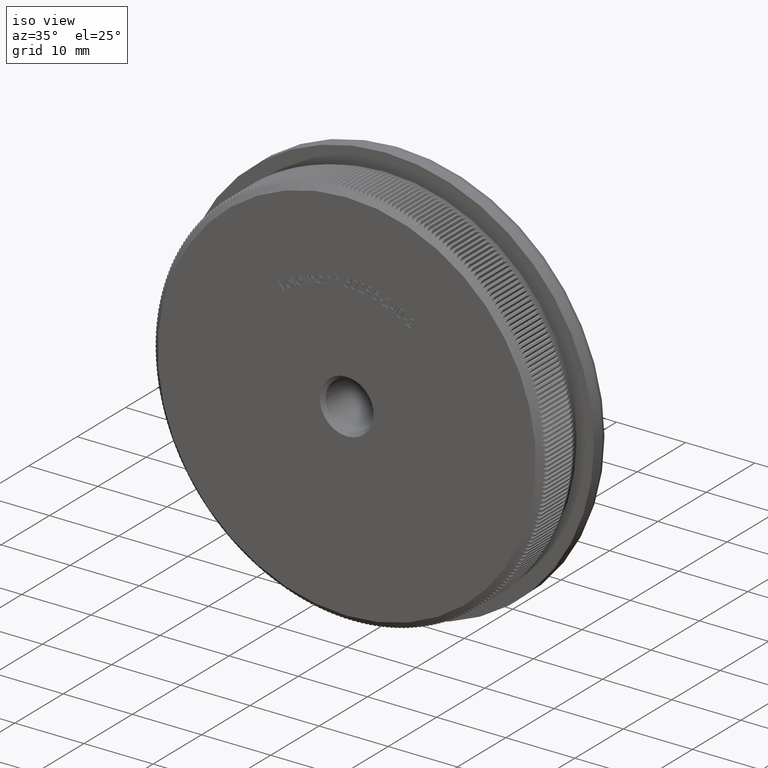
[diagram: clean part render]
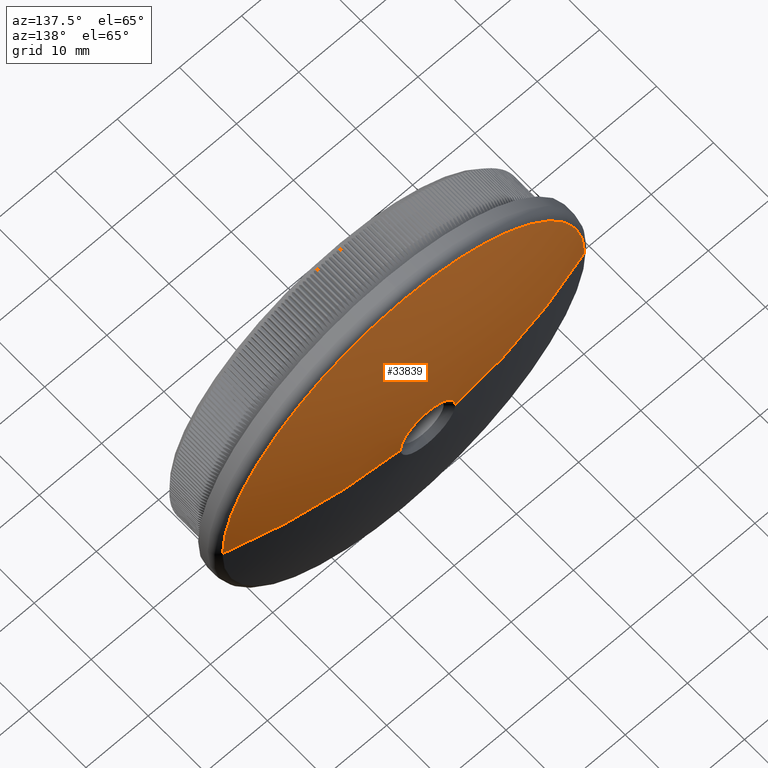
[diagram: tour spotlight — one face highlighted and labeled with its STEP entity id]
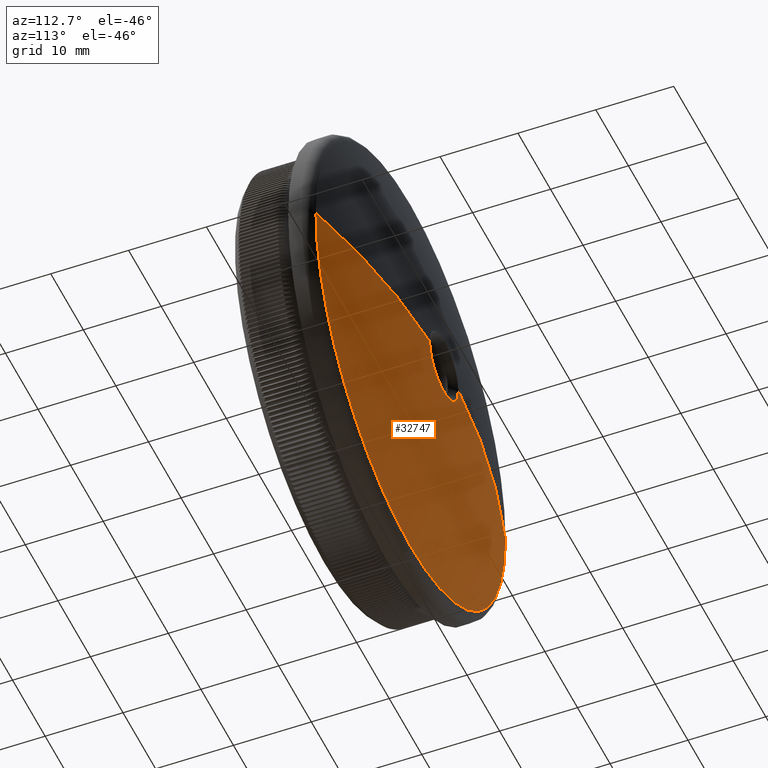
[diagram: tour spotlight — one face highlighted and labeled with its STEP entity id]
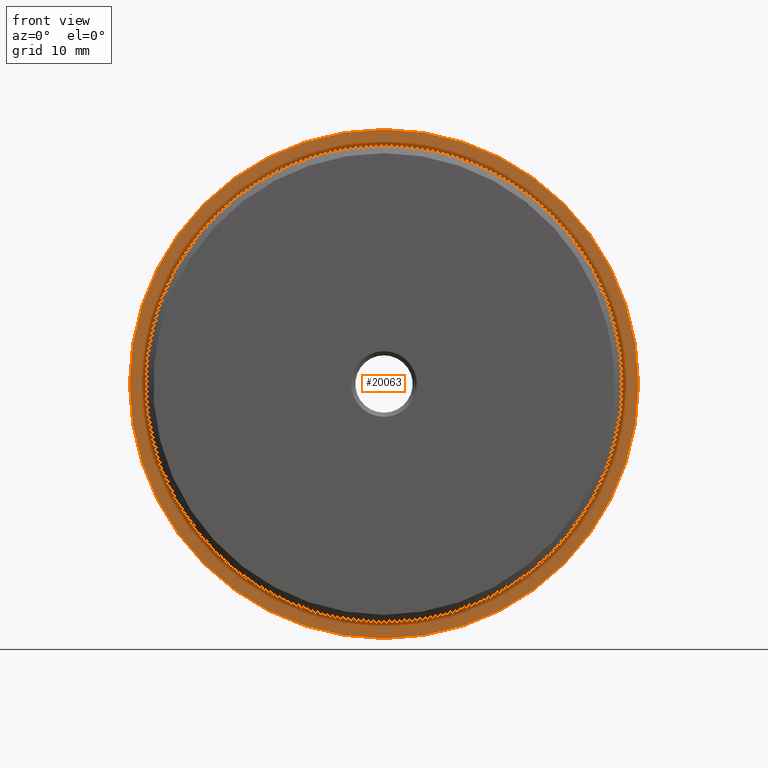
[diagram: tour spotlight — one face highlighted and labeled with its STEP entity id]
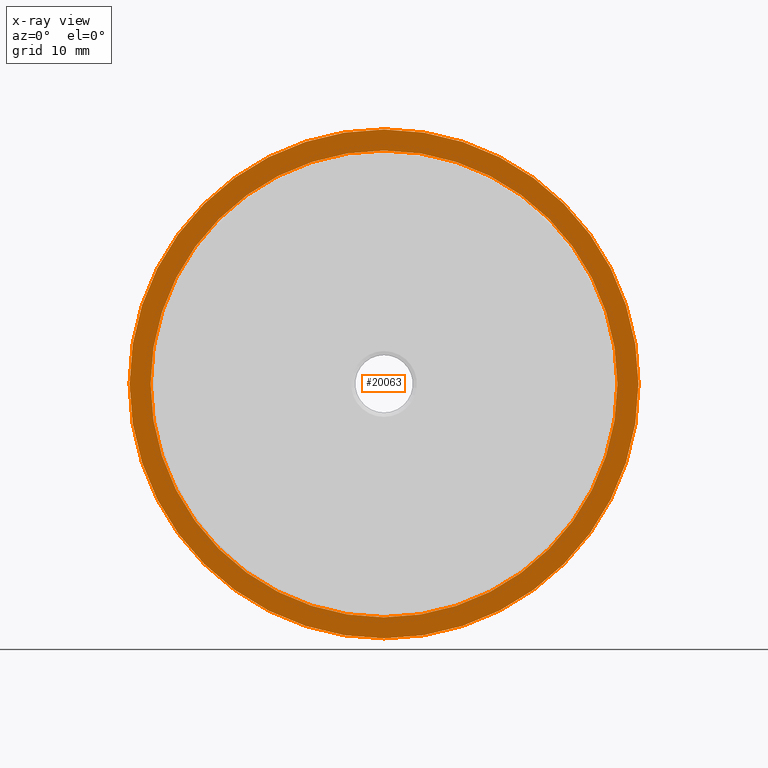
[diagram: x-ray of the same camera — body ghosted, this tour face saturated]
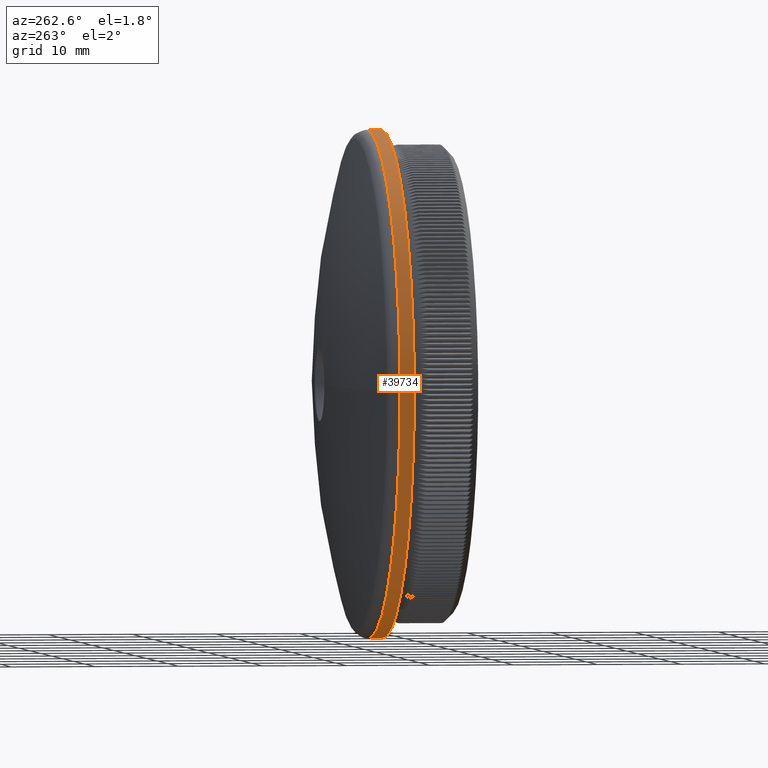
[diagram: tour spotlight — one face highlighted and labeled with its STEP entity id]
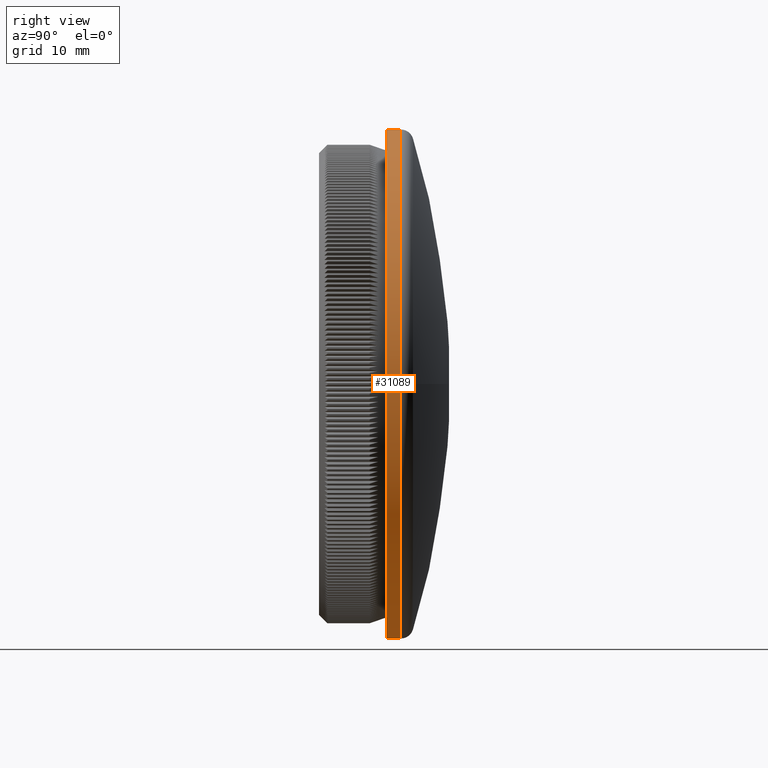
[diagram: tour spotlight — one face highlighted and labeled with its STEP entity id]
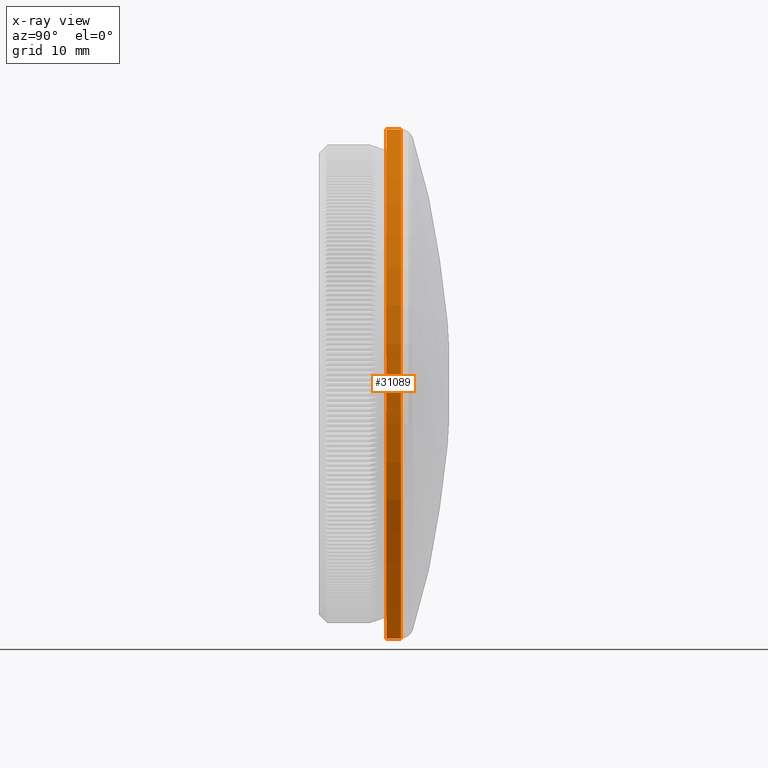
[diagram: x-ray of the same camera — body ghosted, this tour face saturated]
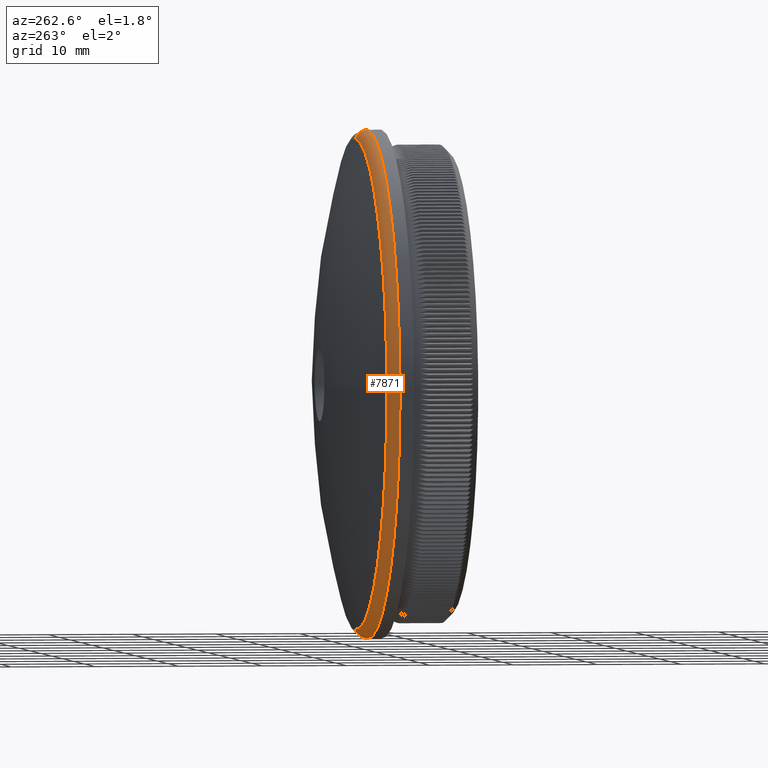
[diagram: tour spotlight — one face highlighted and labeled with its STEP entity id]
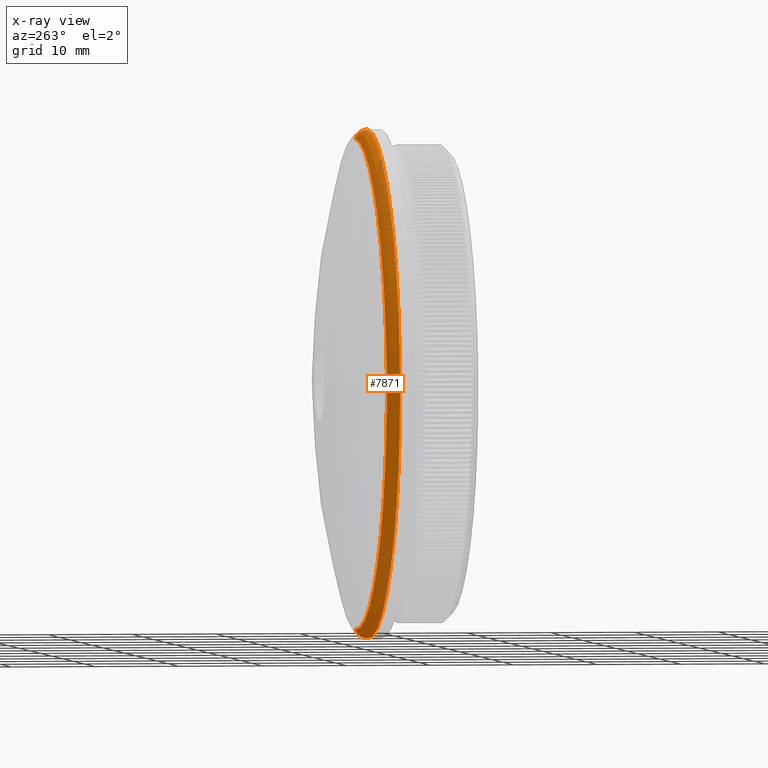
[diagram: x-ray of the same camera — body ghosted, this tour face saturated]
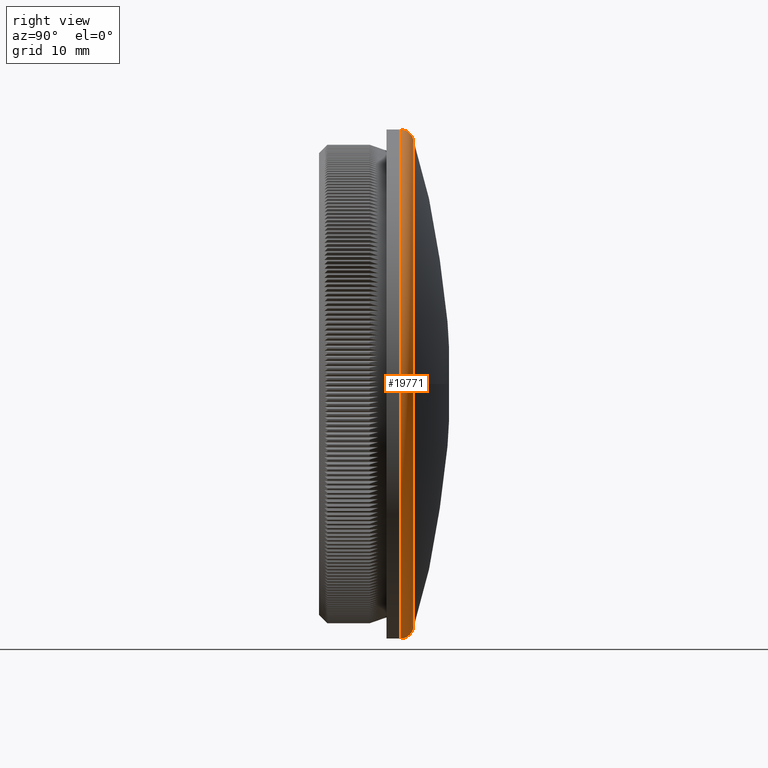
[diagram: tour spotlight — one face highlighted and labeled with its STEP entity id]
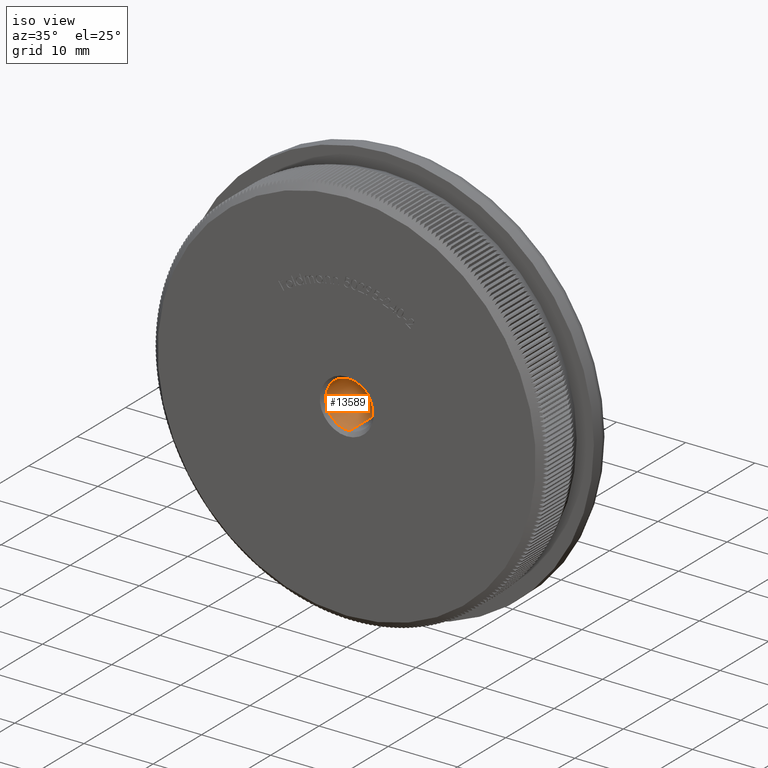
[diagram: tour spotlight — one face highlighted and labeled with its STEP entity id]
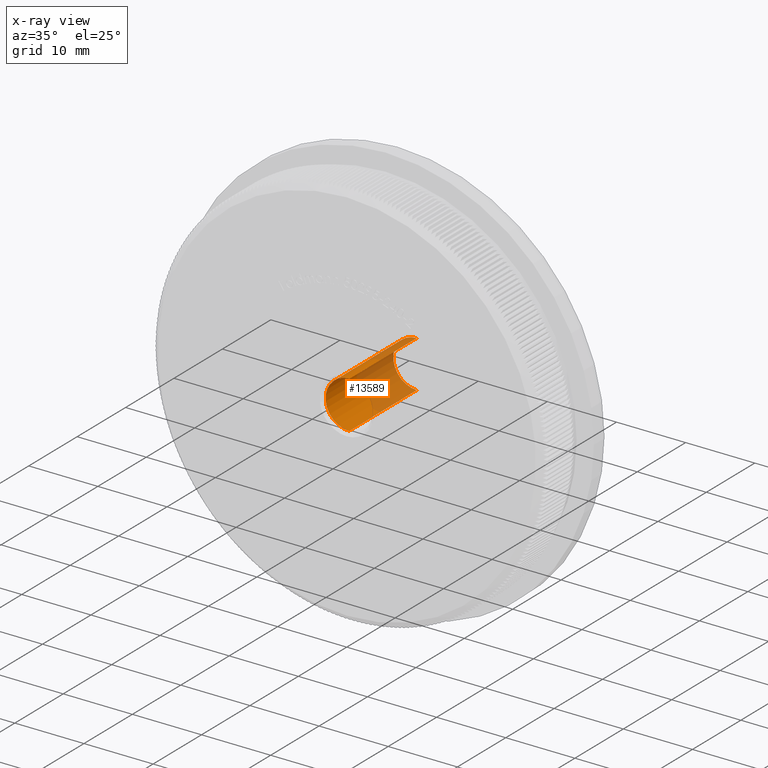
[diagram: x-ray of the same camera — body ghosted, this tour face saturated]
A machine part: a face-by-face anatomy tour. The part has 1131 B-rep faces; the first image is the clean iso view, then the 8 largest visible faces are spotlighted one at a time (largest first), each with its STEP entity span.

Face 1 — auxiliary view, entity #33839. In plain terms, the highlighted spherical surface has radius 99.0545 mm.
Definition (entity closure, byte-faithful):
#135 = VERTEX_POINT ( 'NONE', #34216 ) ;
#211 = CARTESIAN_POINT ( 'NONE',  ( 0.0000000000000000000, -83.55452127659596300, 0.0000000000000000000 ) ) ;
#794 = CIRCLE ( 'NONE', #20867, 4.394244621768513600 ) ;
#1027 = CARTESIAN_POINT ( 'NONE',  ( 0.0000000000000000000, 11.13201241806661900, 0.0000000000000000000 ) ) ;
#1422 = CARTESIAN_POINT ( 'NONE',  ( -4.394244621768513600, 15.40248352619531900, 2.050350667896643000E-015 ) ) ;
#1721 = FACE_OUTER_BOUND ( 'NONE', #28825, .T. ) ;
#2548 = DIRECTION ( 'NONE',  ( 1.000000000000000000, 0.0000000000000000000, 0.0000000000000000000 ) ) ;
#3188 = CARTESIAN_POINT ( 'NONE',  ( 0.0000000000000000000, 15.40248352619531900, 0.0000000000000000000 ) ) ;
#3911 = CARTESIAN_POINT ( 'NONE',  ( -29.09052289363556200, 11.13201241806661200, 3.562561574721359900E-015 ) ) ;
#4835 = VERTEX_POINT ( 'NONE', #10659 ) ;
#5047 = EDGE_CURVE ( 'NONE', #135, #15263, #11059, .T. ) ;
#5736 = EDGE_CURVE ( 'NONE', #18402, #24766, #794, .T. ) ;
#5915 = CARTESIAN_POINT ( 'NONE',  ( 0.0000000000000000000, 11.13201241806661900, 0.0000000000000000000 ) ) ;
#6237 = ORIENTED_EDGE ( 'NONE', *, *, #11907, .T. ) ;
#6964 = DIRECTION ( 'NONE',  ( 1.224646799147353200E-016, -0.0000000000000000000, 1.000000000000000000 ) ) ;
#7618 = AXIS2_PLACEMENT_3D ( 'NONE', #8378, #39705, #43047 ) ;
#7701 = CIRCLE ( 'NONE', #31646, 29.09052289363558300 ) ;
#8378 = CARTESIAN_POINT ( 'NONE',  ( 0.0000000000000000000, -83.55452127659596300, 0.0000000000000000000 ) ) ;
#8640 = CARTESIAN_POINT ( 'NONE',  ( 29.09052289363556200, 11.13201241806661200, 0.0000000000000000000 ) ) ;
#9211 = DIRECTION ( 'NONE',  ( 0.0000000000000000000, 0.0000000000000000000, 1.000000000000000000 ) ) ;
#9407 = DIRECTION ( 'NONE',  ( 0.0000000000000000000, 0.0000000000000000000, -1.000000000000000000 ) ) ;
#9661 = AXIS2_PLACEMENT_3D ( 'NONE', #3188, #34112, #30764 ) ;
#9828 = VERTEX_POINT ( 'NONE', #3911 ) ;
#10659 = CARTESIAN_POINT ( 'NONE',  ( 3.627435837075316700E-015, 11.13201241806661900, 29.09052289363558300 ) ) ;
#11059 = CIRCLE ( 'NONE', #7618, 99.05452127659596300 ) ;
#11907 = EDGE_CURVE ( 'NONE', #4835, #15263, #7701, .T. ) ;
#12661 = ORIENTED_EDGE ( 'NONE', *, *, #5047, .F. ) ;
#12787 = CIRCLE ( 'NONE', #22418, 29.09052289363558300 ) ;
#12810 = EDGE_CURVE ( 'NONE', #24766, #9828, #34331, .T. ) ;
#15101 = DIRECTION ( 'NONE',  ( -0.0000000000000000000, -1.000000000000000000, -0.0000000000000000000 ) ) ;
#15263 = VERTEX_POINT ( 'NONE', #8640 ) ;
#16474 = CIRCLE ( 'NONE', #9661, 4.394244621768513600 ) ;
#18402 = VERTEX_POINT ( 'NONE', #28540 ) ;
#18694 = DIRECTION ( 'NONE',  ( 0.0000000000000000000, 0.0000000000000000000, -1.000000000000000000 ) ) ;
#20104 = ORIENTED_EDGE ( 'NONE', *, *, #37818, .T. ) ;
#20867 = AXIS2_PLACEMENT_3D ( 'NONE', #25185, #15101, #18694 ) ;
#22418 = AXIS2_PLACEMENT_3D ( 'NONE', #1027, #32215, #28737 ) ;
#23181 = AXIS2_PLACEMENT_3D ( 'NONE', #23211, #9211, #2548 ) ;
#23211 = CARTESIAN_POINT ( 'NONE',  ( 0.0000000000000000000, -83.55452127659596300, 0.0000000000000000000 ) ) ;
#23336 = EDGE_CURVE ( 'NONE', #9828, #4835, #12787, .T. ) ;
#24624 = ORIENTED_EDGE ( 'NONE', *, *, #5736, .T. ) ;
#24766 = VERTEX_POINT ( 'NONE', #1422 ) ;
#25185 = CARTESIAN_POINT ( 'NONE',  ( 0.0000000000000000000, 15.40248352619531900, 0.0000000000000000000 ) ) ;
#28540 = CARTESIAN_POINT ( 'NONE',  ( 0.0000000000000000000, 15.40248352619531900, 4.394244621768480700 ) ) ;
#28737 = DIRECTION ( 'NONE',  ( 0.0000000000000000000, 0.0000000000000000000, -1.000000000000000000 ) ) ;
#28825 = EDGE_LOOP ( 'NONE', ( #20104, #24624, #29688, #40977, #6237, #12661 ) ) ;
#29688 = ORIENTED_EDGE ( 'NONE', *, *, #12810, .T. ) ;
#30764 = DIRECTION ( 'NONE',  ( 0.0000000000000000000, 0.0000000000000000000, -1.000000000000000000 ) ) ;
#31646 = AXIS2_PLACEMENT_3D ( 'NONE', #5915, #33367, #9407 ) ;
#32215 = DIRECTION ( 'NONE',  ( 0.0000000000000000000, 1.000000000000000000, 0.0000000000000000000 ) ) ;
#33367 = DIRECTION ( 'NONE',  ( 0.0000000000000000000, 1.000000000000000000, 0.0000000000000000000 ) ) ;
#33839 = ADVANCED_FACE ( 'NONE', ( #1721 ), #37272, .T. ) ;
#34112 = DIRECTION ( 'NONE',  ( -0.0000000000000000000, -1.000000000000000000, -0.0000000000000000000 ) ) ;
#34216 = CARTESIAN_POINT ( 'NONE',  ( 4.394244621768513600, 15.40248352619531900, 0.0000000000000000000 ) ) ;
#34331 = CIRCLE ( 'NONE', #44646, 99.05452127659596300 ) ;
#35038 = DIRECTION ( 'NONE',  ( 1.000000000000000000, 0.0000000000000000000, -1.224646799147353200E-016 ) ) ;
#37272 = SPHERICAL_SURFACE ( 'NONE', #23181, 99.05452127659596300 ) ;
#37818 = EDGE_CURVE ( 'NONE', #135, #18402, #16474, .T. ) ;
#39705 = DIRECTION ( 'NONE',  ( 0.0000000000000000000, 0.0000000000000000000, -1.000000000000000000 ) ) ;
#40977 = ORIENTED_EDGE ( 'NONE', *, *, #23336, .T. ) ;
#43047 = DIRECTION ( 'NONE',  ( -1.000000000000000000, 0.0000000000000000000, 0.0000000000000000000 ) ) ;
#44646 = AXIS2_PLACEMENT_3D ( 'NONE', #211, #6964, #35038 ) ;

Face 2 — auxiliary view, entity #32747. In plain terms, the highlighted spherical surface has radius 99.0545 mm.
Definition (entity closure, byte-faithful):
#135 = VERTEX_POINT ( 'NONE', #34216 ) ;
#211 = CARTESIAN_POINT ( 'NONE',  ( 0.0000000000000000000, -83.55452127659596300, 0.0000000000000000000 ) ) ;
#1133 = CIRCLE ( 'NONE', #39215, 29.09052289363558300 ) ;
#1422 = CARTESIAN_POINT ( 'NONE',  ( -4.394244621768513600, 15.40248352619531900, 2.050350667896643000E-015 ) ) ;
#1546 = EDGE_CURVE ( 'NONE', #15263, #36564, #27428, .T. ) ;
#2003 = CARTESIAN_POINT ( 'NONE',  ( 0.0000000000000000000, 11.13201241806661900, 0.0000000000000000000 ) ) ;
#3117 = EDGE_LOOP ( 'NONE', ( #16344, #18704, #4127, #12900, #21438, #11756 ) ) ;
#3703 = AXIS2_PLACEMENT_3D ( 'NONE', #28331, #31674, #41897 ) ;
#3909 = CARTESIAN_POINT ( 'NONE',  ( 5.381397610719240700E-016, 15.40248352619531900, -4.394244621768480700 ) ) ;
#3911 = CARTESIAN_POINT ( 'NONE',  ( -29.09052289363556200, 11.13201241806661200, 3.562561574721359900E-015 ) ) ;
#4127 = ORIENTED_EDGE ( 'NONE', *, *, #14883, .T. ) ;
#5047 = EDGE_CURVE ( 'NONE', #135, #15263, #11059, .T. ) ;
#6101 = DIRECTION ( 'NONE',  ( -0.0000000000000000000, -1.000000000000000000, -0.0000000000000000000 ) ) ;
#6964 = DIRECTION ( 'NONE',  ( 1.224646799147353200E-016, -0.0000000000000000000, 1.000000000000000000 ) ) ;
#7618 = AXIS2_PLACEMENT_3D ( 'NONE', #8378, #39705, #43047 ) ;
#8378 = CARTESIAN_POINT ( 'NONE',  ( 0.0000000000000000000, -83.55452127659596300, 0.0000000000000000000 ) ) ;
#8640 = CARTESIAN_POINT ( 'NONE',  ( 29.09052289363556200, 11.13201241806661200, 0.0000000000000000000 ) ) ;
#8786 = CIRCLE ( 'NONE', #10291, 4.394244621768513600 ) ;
#9537 = CARTESIAN_POINT ( 'NONE',  ( 0.0000000000000000000, 15.40248352619531900, 0.0000000000000000000 ) ) ;
#9828 = VERTEX_POINT ( 'NONE', #3911 ) ;
#10291 = AXIS2_PLACEMENT_3D ( 'NONE', #9537, #19905, #19463 ) ;
#11059 = CIRCLE ( 'NONE', #7618, 99.05452127659596300 ) ;
#11756 = ORIENTED_EDGE ( 'NONE', *, *, #42417, .T. ) ;
#12810 = EDGE_CURVE ( 'NONE', #24766, #9828, #34331, .T. ) ;
#12877 = DIRECTION ( 'NONE',  ( 0.0000000000000000000, 0.0000000000000000000, -1.000000000000000000 ) ) ;
#12900 = ORIENTED_EDGE ( 'NONE', *, *, #5047, .T. ) ;
#13320 = AXIS2_PLACEMENT_3D ( 'NONE', #23252, #44205, #37229 ) ;
#14883 = EDGE_CURVE ( 'NONE', #19341, #135, #17466, .T. ) ;
#15263 = VERTEX_POINT ( 'NONE', #8640 ) ;
#16344 = ORIENTED_EDGE ( 'NONE', *, *, #12810, .F. ) ;
#17466 = CIRCLE ( 'NONE', #23062, 4.394244621768513600 ) ;
#18704 = ORIENTED_EDGE ( 'NONE', *, *, #40391, .T. ) ;
#19341 = VERTEX_POINT ( 'NONE', #3909 ) ;
#19463 = DIRECTION ( 'NONE',  ( 0.0000000000000000000, 0.0000000000000000000, -1.000000000000000000 ) ) ;
#19905 = DIRECTION ( 'NONE',  ( -0.0000000000000000000, -1.000000000000000000, -0.0000000000000000000 ) ) ;
#21438 = ORIENTED_EDGE ( 'NONE', *, *, #1546, .T. ) ;
#23062 = AXIS2_PLACEMENT_3D ( 'NONE', #26725, #6101, #12877 ) ;
#23252 = CARTESIAN_POINT ( 'NONE',  ( 0.0000000000000000000, -83.55452127659596300, 0.0000000000000000000 ) ) ;
#24766 = VERTEX_POINT ( 'NONE', #1422 ) ;
#26725 = CARTESIAN_POINT ( 'NONE',  ( 0.0000000000000000000, 15.40248352619531900, 0.0000000000000000000 ) ) ;
#27428 = CIRCLE ( 'NONE', #3703, 29.09052289363558300 ) ;
#28331 = CARTESIAN_POINT ( 'NONE',  ( 0.0000000000000000000, 11.13201241806661900, 0.0000000000000000000 ) ) ;
#31674 = DIRECTION ( 'NONE',  ( 0.0000000000000000000, 1.000000000000000000, 0.0000000000000000000 ) ) ;
#32747 = ADVANCED_FACE ( 'NONE', ( #34680 ), #37887, .T. ) ;
#32926 = DIRECTION ( 'NONE',  ( 0.0000000000000000000, 0.0000000000000000000, -1.000000000000000000 ) ) ;
#34004 = CARTESIAN_POINT ( 'NONE',  ( 0.0000000000000000000, 11.13201241806661900, -29.09052289363558300 ) ) ;
#34216 = CARTESIAN_POINT ( 'NONE',  ( 4.394244621768513600, 15.40248352619531900, 0.0000000000000000000 ) ) ;
#34331 = CIRCLE ( 'NONE', #44646, 99.05452127659596300 ) ;
#34680 = FACE_OUTER_BOUND ( 'NONE', #3117, .T. ) ;
#35038 = DIRECTION ( 'NONE',  ( 1.000000000000000000, 0.0000000000000000000, -1.224646799147353200E-016 ) ) ;
#36564 = VERTEX_POINT ( 'NONE', #34004 ) ;
#37229 = DIRECTION ( 'NONE',  ( 1.000000000000000000, 0.0000000000000000000, 0.0000000000000000000 ) ) ;
#37887 = SPHERICAL_SURFACE ( 'NONE', #13320, 99.05452127659596300 ) ;
#39215 = AXIS2_PLACEMENT_3D ( 'NONE', #2003, #39823, #32926 ) ;
#39705 = DIRECTION ( 'NONE',  ( 0.0000000000000000000, 0.0000000000000000000, -1.000000000000000000 ) ) ;
#39823 = DIRECTION ( 'NONE',  ( 0.0000000000000000000, 1.000000000000000000, 0.0000000000000000000 ) ) ;
#40391 = EDGE_CURVE ( 'NONE', #24766, #19341, #8786, .T. ) ;
#41897 = DIRECTION ( 'NONE',  ( 0.0000000000000000000, 0.0000000000000000000, -1.000000000000000000 ) ) ;
#42417 = EDGE_CURVE ( 'NONE', #36564, #9828, #1133, .T. ) ;
#43047 = DIRECTION ( 'NONE',  ( -1.000000000000000000, 0.0000000000000000000, 0.0000000000000000000 ) ) ;
#44205 = DIRECTION ( 'NONE',  ( 0.0000000000000000000, 0.0000000000000000000, 1.000000000000000000 ) ) ;
#44646 = AXIS2_PLACEMENT_3D ( 'NONE', #211, #6964, #35038 ) ;

Face 3 — front view, entity #20063. An x-ray twin of the same camera follows (body ghosted, this face saturated) — the face is partly hidden behind the body. In plain terms, the highlighted planar face has unit normal (0, -1, -0).
Definition (entity closure, byte-faithful):
#1731 = ORIENTED_EDGE ( 'NONE', *, *, #36964, .F. ) ;
#4893 = DIRECTION ( 'NONE',  ( 0.0000000000000000000, 0.0000000000000000000, -1.000000000000000000 ) ) ;
#5771 = DIRECTION ( 'NONE',  ( 0.0000000000000000000, 0.0000000000000000000, -1.000000000000000000 ) ) ;
#7091 = EDGE_LOOP ( 'NONE', ( #10604, #17700 ) ) ;
#7506 = CARTESIAN_POINT ( 'NONE',  ( 3.429011037612589300E-015, 8.000000000000000000, 27.65000000000000200 ) ) ;
#10574 = VERTEX_POINT ( 'NONE', #7506 ) ;
#10604 = ORIENTED_EDGE ( 'NONE', *, *, #36972, .T. ) ;
#11817 = PLANE ( 'NONE',  #32696 ) ;
#12393 = CIRCLE ( 'NONE', #42354, 30.14999999999999900 ) ;
#12460 = VERTEX_POINT ( 'NONE', #18337 ) ;
#15558 = VERTEX_POINT ( 'NONE', #30140 ) ;
#16682 = EDGE_LOOP ( 'NONE', ( #41150, #1731 ) ) ;
#17496 = DIRECTION ( 'NONE',  ( -0.0000000000000000000, -1.000000000000000000, -0.0000000000000000000 ) ) ;
#17700 = ORIENTED_EDGE ( 'NONE', *, *, #24585, .T. ) ;
#18337 = CARTESIAN_POINT ( 'NONE',  ( 3.692310099429270400E-015, 8.000000000000000000, 30.14999999999999900 ) ) ;
#18648 = CIRCLE ( 'NONE', #21191, 27.65000000000000200 ) ;
#19204 = CIRCLE ( 'NONE', #19742, 30.14999999999999900 ) ;
#19638 = DIRECTION ( 'NONE',  ( -0.0000000000000000000, -1.000000000000000000, -0.0000000000000000000 ) ) ;
#19742 = AXIS2_PLACEMENT_3D ( 'NONE', #22964, #23102, #5771 ) ;
#20063 = ADVANCED_FACE ( 'NONE', ( #40414, #39332 ), #11817, .T. ) ;
#20297 = CARTESIAN_POINT ( 'NONE',  ( 0.0000000000000000000, 8.000000000000000000, -27.65000000000000200 ) ) ;
#21191 = AXIS2_PLACEMENT_3D ( 'NONE', #44657, #17496, #23997 ) ;
#22964 = CARTESIAN_POINT ( 'NONE',  ( 0.0000000000000000000, 8.000000000000000000, 0.0000000000000000000 ) ) ;
#23102 = DIRECTION ( 'NONE',  ( -0.0000000000000000000, -1.000000000000000000, -0.0000000000000000000 ) ) ;
#23552 = CARTESIAN_POINT ( 'NONE',  ( 0.0000000000000000000, 8.000000000000000000, 0.0000000000000000000 ) ) ;
#23997 = DIRECTION ( 'NONE',  ( 0.0000000000000000000, 0.0000000000000000000, -1.000000000000000000 ) ) ;
#24076 = VERTEX_POINT ( 'NONE', #20297 ) ;
#24585 = EDGE_CURVE ( 'NONE', #12460, #15558, #12393, .T. ) ;
#25536 = CARTESIAN_POINT ( 'NONE',  ( 27.65000000000000200, 8.000000000000000000, 0.0000000000000000000 ) ) ;
#28690 = CARTESIAN_POINT ( 'NONE',  ( 0.0000000000000000000, 8.000000000000000000, 0.0000000000000000000 ) ) ;
#30140 = CARTESIAN_POINT ( 'NONE',  ( 0.0000000000000000000, 8.000000000000000000, -30.14999999999999900 ) ) ;
#32178 = DIRECTION ( 'NONE',  ( 0.0000000000000000000, -1.000000000000000000, -0.0000000000000000000 ) ) ;
#32696 = AXIS2_PLACEMENT_3D ( 'NONE', #25536, #32178, #4893 ) ;
#33633 = AXIS2_PLACEMENT_3D ( 'NONE', #23552, #19638, #44061 ) ;
#35045 = DIRECTION ( 'NONE',  ( 0.0000000000000000000, 0.0000000000000000000, -1.000000000000000000 ) ) ;
#36964 = EDGE_CURVE ( 'NONE', #10574, #24076, #42396, .T. ) ;
#36972 = EDGE_CURVE ( 'NONE', #15558, #12460, #19204, .T. ) ;
#37874 = EDGE_CURVE ( 'NONE', #24076, #10574, #18648, .T. ) ;
#38923 = DIRECTION ( 'NONE',  ( -0.0000000000000000000, -1.000000000000000000, -0.0000000000000000000 ) ) ;
#39332 = FACE_BOUND ( 'NONE', #16682, .T. ) ;
#40414 = FACE_OUTER_BOUND ( 'NONE', #7091, .T. ) ;
#41150 = ORIENTED_EDGE ( 'NONE', *, *, #37874, .F. ) ;
#42354 = AXIS2_PLACEMENT_3D ( 'NONE', #28690, #38923, #35045 ) ;
#42396 = CIRCLE ( 'NONE', #33633, 27.65000000000000200 ) ;
#44061 = DIRECTION ( 'NONE',  ( 0.0000000000000000000, 0.0000000000000000000, -1.000000000000000000 ) ) ;
#44657 = CARTESIAN_POINT ( 'NONE',  ( 0.0000000000000000000, 8.000000000000000000, 0.0000000000000000000 ) ) ;

Face 4 — auxiliary view, entity #39734. In plain terms, the highlighted cylindrical surface (partial cylindrical patch) has radius 30.15 mm, axis along (-0, -1, -0).
Definition (entity closure, byte-faithful):
#515 = LINE ( 'NONE', #24755, #35592 ) ;
#1557 = VERTEX_POINT ( 'NONE', #11160 ) ;
#5466 = DIRECTION ( 'NONE',  ( -0.0000000000000000000, -1.000000000000000000, -0.0000000000000000000 ) ) ;
#6446 = CARTESIAN_POINT ( 'NONE',  ( 0.0000000000000000000, 9.698157620612200000, -30.14999999999999900 ) ) ;
#7613 = EDGE_CURVE ( 'NONE', #1557, #28846, #10384, .T. ) ;
#8228 = ORIENTED_EDGE ( 'NONE', *, *, #7613, .T. ) ;
#10384 = CIRCLE ( 'NONE', #22026, 30.14999999999999900 ) ;
#10735 = DIRECTION ( 'NONE',  ( -0.0000000000000000000, -1.000000000000000000, -0.0000000000000000000 ) ) ;
#11160 = CARTESIAN_POINT ( 'NONE',  ( 3.692310099429270400E-015, 9.698157620612200000, 30.14999999999999900 ) ) ;
#11351 = EDGE_CURVE ( 'NONE', #28846, #15558, #515, .T. ) ;
#12393 = CIRCLE ( 'NONE', #42354, 30.14999999999999900 ) ;
#12460 = VERTEX_POINT ( 'NONE', #18337 ) ;
#12920 = ORIENTED_EDGE ( 'NONE', *, *, #24585, .F. ) ;
#14243 = CYLINDRICAL_SURFACE ( 'NONE', #14609, 30.14999999999999900 ) ;
#14609 = AXIS2_PLACEMENT_3D ( 'NONE', #30192, #36842, #16205 ) ;
#15558 = VERTEX_POINT ( 'NONE', #30140 ) ;
#16205 = DIRECTION ( 'NONE',  ( 0.0000000000000000000, 0.0000000000000000000, -1.000000000000000000 ) ) ;
#17765 = EDGE_CURVE ( 'NONE', #1557, #12460, #31384, .T. ) ;
#18337 = CARTESIAN_POINT ( 'NONE',  ( 3.692310099429270400E-015, 8.000000000000000000, 30.14999999999999900 ) ) ;
#22026 = AXIS2_PLACEMENT_3D ( 'NONE', #43574, #39943, #29397 ) ;
#22819 = CARTESIAN_POINT ( 'NONE',  ( 3.692310099429270400E-015, 0.0000000000000000000, 30.14999999999999900 ) ) ;
#24585 = EDGE_CURVE ( 'NONE', #12460, #15558, #12393, .T. ) ;
#24755 = CARTESIAN_POINT ( 'NONE',  ( 0.0000000000000000000, 0.0000000000000000000, -30.14999999999999900 ) ) ;
#26101 = EDGE_LOOP ( 'NONE', ( #34387, #8228, #27513, #12920 ) ) ;
#27513 = ORIENTED_EDGE ( 'NONE', *, *, #11351, .T. ) ;
#28690 = CARTESIAN_POINT ( 'NONE',  ( 0.0000000000000000000, 8.000000000000000000, 0.0000000000000000000 ) ) ;
#28846 = VERTEX_POINT ( 'NONE', #6446 ) ;
#29397 = DIRECTION ( 'NONE',  ( 0.0000000000000000000, 0.0000000000000000000, -1.000000000000000000 ) ) ;
#30140 = CARTESIAN_POINT ( 'NONE',  ( 0.0000000000000000000, 8.000000000000000000, -30.14999999999999900 ) ) ;
#30192 = CARTESIAN_POINT ( 'NONE',  ( 0.0000000000000000000, 0.0000000000000000000, 0.0000000000000000000 ) ) ;
#31384 = LINE ( 'NONE', #22819, #43252 ) ;
#32589 = FACE_OUTER_BOUND ( 'NONE', #26101, .T. ) ;
#34387 = ORIENTED_EDGE ( 'NONE', *, *, #17765, .F. ) ;
#35045 = DIRECTION ( 'NONE',  ( 0.0000000000000000000, 0.0000000000000000000, -1.000000000000000000 ) ) ;
#35592 = VECTOR ( 'NONE', #10735, 1000.000000000000000 ) ;
#36842 = DIRECTION ( 'NONE',  ( -0.0000000000000000000, -1.000000000000000000, -0.0000000000000000000 ) ) ;
#38923 = DIRECTION ( 'NONE',  ( -0.0000000000000000000, -1.000000000000000000, -0.0000000000000000000 ) ) ;
#39734 = ADVANCED_FACE ( 'NONE', ( #32589 ), #14243, .T. ) ;
#39943 = DIRECTION ( 'NONE',  ( -0.0000000000000000000, -1.000000000000000000, -0.0000000000000000000 ) ) ;
#42354 = AXIS2_PLACEMENT_3D ( 'NONE', #28690, #38923, #35045 ) ;
#43252 = VECTOR ( 'NONE', #5466, 1000.000000000000000 ) ;
#43574 = CARTESIAN_POINT ( 'NONE',  ( 0.0000000000000000000, 9.698157620612200000, 0.0000000000000000000 ) ) ;

Face 5 — right view, entity #31089. An x-ray twin of the same camera follows (body ghosted, this face saturated) — the face is partly hidden behind the body. In plain terms, the highlighted cylindrical surface (partial cylindrical patch) has radius 30.15 mm, axis along (-0, -1, -0).
Definition (entity closure, byte-faithful):
#515 = LINE ( 'NONE', #24755, #35592 ) ;
#687 = AXIS2_PLACEMENT_3D ( 'NONE', #34027, #40640, #17103 ) ;
#1557 = VERTEX_POINT ( 'NONE', #11160 ) ;
#2745 = CIRCLE ( 'NONE', #687, 30.14999999999999900 ) ;
#5466 = DIRECTION ( 'NONE',  ( -0.0000000000000000000, -1.000000000000000000, -0.0000000000000000000 ) ) ;
#5573 = FACE_OUTER_BOUND ( 'NONE', #36120, .T. ) ;
#5771 = DIRECTION ( 'NONE',  ( 0.0000000000000000000, 0.0000000000000000000, -1.000000000000000000 ) ) ;
#6446 = CARTESIAN_POINT ( 'NONE',  ( 0.0000000000000000000, 9.698157620612200000, -30.14999999999999900 ) ) ;
#7074 = ORIENTED_EDGE ( 'NONE', *, *, #11351, .F. ) ;
#10735 = DIRECTION ( 'NONE',  ( -0.0000000000000000000, -1.000000000000000000, -0.0000000000000000000 ) ) ;
#11160 = CARTESIAN_POINT ( 'NONE',  ( 3.692310099429270400E-015, 9.698157620612200000, 30.14999999999999900 ) ) ;
#11351 = EDGE_CURVE ( 'NONE', #28846, #15558, #515, .T. ) ;
#12460 = VERTEX_POINT ( 'NONE', #18337 ) ;
#15558 = VERTEX_POINT ( 'NONE', #30140 ) ;
#16756 = ORIENTED_EDGE ( 'NONE', *, *, #17765, .T. ) ;
#17103 = DIRECTION ( 'NONE',  ( 0.0000000000000000000, 0.0000000000000000000, -1.000000000000000000 ) ) ;
#17162 = CARTESIAN_POINT ( 'NONE',  ( 0.0000000000000000000, 0.0000000000000000000, 0.0000000000000000000 ) ) ;
#17765 = EDGE_CURVE ( 'NONE', #1557, #12460, #31384, .T. ) ;
#17961 = CYLINDRICAL_SURFACE ( 'NONE', #35270, 30.14999999999999900 ) ;
#18337 = CARTESIAN_POINT ( 'NONE',  ( 3.692310099429270400E-015, 8.000000000000000000, 30.14999999999999900 ) ) ;
#19204 = CIRCLE ( 'NONE', #19742, 30.14999999999999900 ) ;
#19742 = AXIS2_PLACEMENT_3D ( 'NONE', #22964, #23102, #5771 ) ;
#21244 = DIRECTION ( 'NONE',  ( -0.0000000000000000000, -1.000000000000000000, -0.0000000000000000000 ) ) ;
#22819 = CARTESIAN_POINT ( 'NONE',  ( 3.692310099429270400E-015, 0.0000000000000000000, 30.14999999999999900 ) ) ;
#22964 = CARTESIAN_POINT ( 'NONE',  ( 0.0000000000000000000, 8.000000000000000000, 0.0000000000000000000 ) ) ;
#23102 = DIRECTION ( 'NONE',  ( -0.0000000000000000000, -1.000000000000000000, -0.0000000000000000000 ) ) ;
#24755 = CARTESIAN_POINT ( 'NONE',  ( 0.0000000000000000000, 0.0000000000000000000, -30.14999999999999900 ) ) ;
#27578 = ORIENTED_EDGE ( 'NONE', *, *, #36972, .F. ) ;
#28846 = VERTEX_POINT ( 'NONE', #6446 ) ;
#30140 = CARTESIAN_POINT ( 'NONE',  ( 0.0000000000000000000, 8.000000000000000000, -30.14999999999999900 ) ) ;
#31089 = ADVANCED_FACE ( 'NONE', ( #5573 ), #17961, .T. ) ;
#31384 = LINE ( 'NONE', #22819, #43252 ) ;
#34027 = CARTESIAN_POINT ( 'NONE',  ( 0.0000000000000000000, 9.698157620612200000, 0.0000000000000000000 ) ) ;
#34411 = EDGE_CURVE ( 'NONE', #28846, #1557, #2745, .T. ) ;
#34836 = DIRECTION ( 'NONE',  ( 0.0000000000000000000, 0.0000000000000000000, -1.000000000000000000 ) ) ;
#35270 = AXIS2_PLACEMENT_3D ( 'NONE', #17162, #21244, #34836 ) ;
#35592 = VECTOR ( 'NONE', #10735, 1000.000000000000000 ) ;
#36120 = EDGE_LOOP ( 'NONE', ( #42223, #16756, #27578, #7074 ) ) ;
#36972 = EDGE_CURVE ( 'NONE', #15558, #12460, #19204, .T. ) ;
#40640 = DIRECTION ( 'NONE',  ( -0.0000000000000000000, -1.000000000000000000, -0.0000000000000000000 ) ) ;
#42223 = ORIENTED_EDGE ( 'NONE', *, *, #34411, .T. ) ;
#43252 = VECTOR ( 'NONE', #5466, 1000.000000000000000 ) ;

Face 6 — auxiliary view, entity #7871. An x-ray twin of the same camera follows (body ghosted, this face saturated) — the face is partly hidden behind the body. In plain terms, the highlighted toroidal blend (fillet) surface has major radius 28.65 mm and minor (blend) radius 1.5 mm.
Definition (entity closure, byte-faithful):
#79 = TOROIDAL_SURFACE ( 'NONE', #16762, 28.64999999999999900, 1.500000000000000000 ) ;
#1027 = CARTESIAN_POINT ( 'NONE',  ( 0.0000000000000000000, 11.13201241806661900, 0.0000000000000000000 ) ) ;
#1133 = CIRCLE ( 'NONE', #39215, 29.09052289363558300 ) ;
#1557 = VERTEX_POINT ( 'NONE', #11160 ) ;
#1821 = AXIS2_PLACEMENT_3D ( 'NONE', #13977, #31606, #41835 ) ;
#2003 = CARTESIAN_POINT ( 'NONE',  ( 0.0000000000000000000, 11.13201241806661900, 0.0000000000000000000 ) ) ;
#2046 = ORIENTED_EDGE ( 'NONE', *, *, #7613, .F. ) ;
#2147 = DIRECTION ( 'NONE',  ( 0.0000000000000000000, 0.0000000000000000000, 1.000000000000000000 ) ) ;
#3533 = CIRCLE ( 'NONE', #1821, 1.500000000000001300 ) ;
#3911 = CARTESIAN_POINT ( 'NONE',  ( -29.09052289363556200, 11.13201241806661200, 3.562561574721359900E-015 ) ) ;
#4827 = EDGE_CURVE ( 'NONE', #4835, #1557, #3533, .T. ) ;
#4835 = VERTEX_POINT ( 'NONE', #10659 ) ;
#6446 = CARTESIAN_POINT ( 'NONE',  ( 0.0000000000000000000, 9.698157620612200000, -30.14999999999999900 ) ) ;
#7613 = EDGE_CURVE ( 'NONE', #1557, #28846, #10384, .T. ) ;
#7871 = ADVANCED_FACE ( 'NONE', ( #37815 ), #79, .T. ) ;
#9828 = VERTEX_POINT ( 'NONE', #3911 ) ;
#10384 = CIRCLE ( 'NONE', #22026, 30.14999999999999900 ) ;
#10659 = CARTESIAN_POINT ( 'NONE',  ( 3.627435837075316700E-015, 11.13201241806661900, 29.09052289363558300 ) ) ;
#11160 = CARTESIAN_POINT ( 'NONE',  ( 3.692310099429270400E-015, 9.698157620612200000, 30.14999999999999900 ) ) ;
#12105 = CIRCLE ( 'NONE', #14750, 1.500000000000001300 ) ;
#12771 = ORIENTED_EDGE ( 'NONE', *, *, #4827, .F. ) ;
#12787 = CIRCLE ( 'NONE', #22418, 29.09052289363558300 ) ;
#12966 = CARTESIAN_POINT ( 'NONE',  ( 0.0000000000000000000, 9.698157620612200000, 0.0000000000000000000 ) ) ;
#13977 = CARTESIAN_POINT ( 'NONE',  ( 3.508613079557167700E-015, 9.698157620612200000, 28.64999999999999900 ) ) ;
#14750 = AXIS2_PLACEMENT_3D ( 'NONE', #37388, #19182, #2147 ) ;
#16762 = AXIS2_PLACEMENT_3D ( 'NONE', #12966, #37071, #26816 ) ;
#19182 = DIRECTION ( 'NONE',  ( -1.000000000000000000, 0.0000000000000000000, 0.0000000000000000000 ) ) ;
#22026 = AXIS2_PLACEMENT_3D ( 'NONE', #43574, #39943, #29397 ) ;
#22418 = AXIS2_PLACEMENT_3D ( 'NONE', #1027, #32215, #28737 ) ;
#23336 = EDGE_CURVE ( 'NONE', #9828, #4835, #12787, .T. ) ;
#26816 = DIRECTION ( 'NONE',  ( 0.0000000000000000000, 0.0000000000000000000, -1.000000000000000000 ) ) ;
#28737 = DIRECTION ( 'NONE',  ( 0.0000000000000000000, 0.0000000000000000000, -1.000000000000000000 ) ) ;
#28846 = VERTEX_POINT ( 'NONE', #6446 ) ;
#29397 = DIRECTION ( 'NONE',  ( 0.0000000000000000000, 0.0000000000000000000, -1.000000000000000000 ) ) ;
#29709 = EDGE_CURVE ( 'NONE', #36564, #28846, #12105, .T. ) ;
#30751 = ORIENTED_EDGE ( 'NONE', *, *, #42417, .F. ) ;
#31606 = DIRECTION ( 'NONE',  ( 1.000000000000000000, 0.0000000000000000000, -1.224646799147353500E-016 ) ) ;
#32215 = DIRECTION ( 'NONE',  ( 0.0000000000000000000, 1.000000000000000000, 0.0000000000000000000 ) ) ;
#32926 = DIRECTION ( 'NONE',  ( 0.0000000000000000000, 0.0000000000000000000, -1.000000000000000000 ) ) ;
#34004 = CARTESIAN_POINT ( 'NONE',  ( 0.0000000000000000000, 11.13201241806661900, -29.09052289363558300 ) ) ;
#36564 = VERTEX_POINT ( 'NONE', #34004 ) ;
#37071 = DIRECTION ( 'NONE',  ( -0.0000000000000000000, -1.000000000000000000, -0.0000000000000000000 ) ) ;
#37388 = CARTESIAN_POINT ( 'NONE',  ( 0.0000000000000000000, 9.698157620612200000, -28.64999999999999900 ) ) ;
#37815 = FACE_OUTER_BOUND ( 'NONE', #41741, .T. ) ;
#39215 = AXIS2_PLACEMENT_3D ( 'NONE', #2003, #39823, #32926 ) ;
#39823 = DIRECTION ( 'NONE',  ( 0.0000000000000000000, 1.000000000000000000, 0.0000000000000000000 ) ) ;
#39943 = DIRECTION ( 'NONE',  ( -0.0000000000000000000, -1.000000000000000000, -0.0000000000000000000 ) ) ;
#41268 = ORIENTED_EDGE ( 'NONE', *, *, #23336, .F. ) ;
#41741 = EDGE_LOOP ( 'NONE', ( #12771, #41268, #30751, #43981, #2046 ) ) ;
#41835 = DIRECTION ( 'NONE',  ( -1.224646799147352000E-016, 0.0000000000000000000, -1.000000000000000000 ) ) ;
#42417 = EDGE_CURVE ( 'NONE', #36564, #9828, #1133, .T. ) ;
#43574 = CARTESIAN_POINT ( 'NONE',  ( 0.0000000000000000000, 9.698157620612200000, 0.0000000000000000000 ) ) ;
#43981 = ORIENTED_EDGE ( 'NONE', *, *, #29709, .T. ) ;

Face 7 — right view, entity #19771. In plain terms, the highlighted toroidal blend (fillet) surface has major radius 28.65 mm and minor (blend) radius 1.5 mm.
Definition (entity closure, byte-faithful):
#687 = AXIS2_PLACEMENT_3D ( 'NONE', #34027, #40640, #17103 ) ;
#1546 = EDGE_CURVE ( 'NONE', #15263, #36564, #27428, .T. ) ;
#1557 = VERTEX_POINT ( 'NONE', #11160 ) ;
#1821 = AXIS2_PLACEMENT_3D ( 'NONE', #13977, #31606, #41835 ) ;
#2086 = ORIENTED_EDGE ( 'NONE', *, *, #29709, .F. ) ;
#2147 = DIRECTION ( 'NONE',  ( 0.0000000000000000000, 0.0000000000000000000, 1.000000000000000000 ) ) ;
#2745 = CIRCLE ( 'NONE', #687, 30.14999999999999900 ) ;
#3533 = CIRCLE ( 'NONE', #1821, 1.500000000000001300 ) ;
#3703 = AXIS2_PLACEMENT_3D ( 'NONE', #28331, #31674, #41897 ) ;
#4827 = EDGE_CURVE ( 'NONE', #4835, #1557, #3533, .T. ) ;
#4835 = VERTEX_POINT ( 'NONE', #10659 ) ;
#5915 = CARTESIAN_POINT ( 'NONE',  ( 0.0000000000000000000, 11.13201241806661900, 0.0000000000000000000 ) ) ;
#6446 = CARTESIAN_POINT ( 'NONE',  ( 0.0000000000000000000, 9.698157620612200000, -30.14999999999999900 ) ) ;
#7701 = CIRCLE ( 'NONE', #31646, 29.09052289363558300 ) ;
#8640 = CARTESIAN_POINT ( 'NONE',  ( 29.09052289363556200, 11.13201241806661200, 0.0000000000000000000 ) ) ;
#9407 = DIRECTION ( 'NONE',  ( 0.0000000000000000000, 0.0000000000000000000, -1.000000000000000000 ) ) ;
#10659 = CARTESIAN_POINT ( 'NONE',  ( 3.627435837075316700E-015, 11.13201241806661900, 29.09052289363558300 ) ) ;
#11160 = CARTESIAN_POINT ( 'NONE',  ( 3.692310099429270400E-015, 9.698157620612200000, 30.14999999999999900 ) ) ;
#11907 = EDGE_CURVE ( 'NONE', #4835, #15263, #7701, .T. ) ;
#12105 = CIRCLE ( 'NONE', #14750, 1.500000000000001300 ) ;
#13641 = CARTESIAN_POINT ( 'NONE',  ( 0.0000000000000000000, 9.698157620612200000, 0.0000000000000000000 ) ) ;
#13977 = CARTESIAN_POINT ( 'NONE',  ( 3.508613079557167700E-015, 9.698157620612200000, 28.64999999999999900 ) ) ;
#14750 = AXIS2_PLACEMENT_3D ( 'NONE', #37388, #19182, #2147 ) ;
#15263 = VERTEX_POINT ( 'NONE', #8640 ) ;
#17103 = DIRECTION ( 'NONE',  ( 0.0000000000000000000, 0.0000000000000000000, -1.000000000000000000 ) ) ;
#17338 = AXIS2_PLACEMENT_3D ( 'NONE', #13641, #37436, #40908 ) ;
#19182 = DIRECTION ( 'NONE',  ( -1.000000000000000000, 0.0000000000000000000, 0.0000000000000000000 ) ) ;
#19771 = ADVANCED_FACE ( 'NONE', ( #39898 ), #24819, .T. ) ;
#19809 = ORIENTED_EDGE ( 'NONE', *, *, #34411, .F. ) ;
#22965 = ORIENTED_EDGE ( 'NONE', *, *, #4827, .T. ) ;
#24211 = EDGE_LOOP ( 'NONE', ( #27391, #22965, #19809, #2086, #31966 ) ) ;
#24819 = TOROIDAL_SURFACE ( 'NONE', #17338, 28.64999999999999900, 1.500000000000000000 ) ;
#27391 = ORIENTED_EDGE ( 'NONE', *, *, #11907, .F. ) ;
#27428 = CIRCLE ( 'NONE', #3703, 29.09052289363558300 ) ;
#28331 = CARTESIAN_POINT ( 'NONE',  ( 0.0000000000000000000, 11.13201241806661900, 0.0000000000000000000 ) ) ;
#28846 = VERTEX_POINT ( 'NONE', #6446 ) ;
#29709 = EDGE_CURVE ( 'NONE', #36564, #28846, #12105, .T. ) ;
#31606 = DIRECTION ( 'NONE',  ( 1.000000000000000000, 0.0000000000000000000, -1.224646799147353500E-016 ) ) ;
#31646 = AXIS2_PLACEMENT_3D ( 'NONE', #5915, #33367, #9407 ) ;
#31674 = DIRECTION ( 'NONE',  ( 0.0000000000000000000, 1.000000000000000000, 0.0000000000000000000 ) ) ;
#31966 = ORIENTED_EDGE ( 'NONE', *, *, #1546, .F. ) ;
#33367 = DIRECTION ( 'NONE',  ( 0.0000000000000000000, 1.000000000000000000, 0.0000000000000000000 ) ) ;
#34004 = CARTESIAN_POINT ( 'NONE',  ( 0.0000000000000000000, 11.13201241806661900, -29.09052289363558300 ) ) ;
#34027 = CARTESIAN_POINT ( 'NONE',  ( 0.0000000000000000000, 9.698157620612200000, 0.0000000000000000000 ) ) ;
#34411 = EDGE_CURVE ( 'NONE', #28846, #1557, #2745, .T. ) ;
#36564 = VERTEX_POINT ( 'NONE', #34004 ) ;
#37388 = CARTESIAN_POINT ( 'NONE',  ( 0.0000000000000000000, 9.698157620612200000, -28.64999999999999900 ) ) ;
#37436 = DIRECTION ( 'NONE',  ( -0.0000000000000000000, -1.000000000000000000, -0.0000000000000000000 ) ) ;
#39898 = FACE_OUTER_BOUND ( 'NONE', #24211, .T. ) ;
#40640 = DIRECTION ( 'NONE',  ( -0.0000000000000000000, -1.000000000000000000, -0.0000000000000000000 ) ) ;
#40908 = DIRECTION ( 'NONE',  ( 0.0000000000000000000, 0.0000000000000000000, -1.000000000000000000 ) ) ;
#41835 = DIRECTION ( 'NONE',  ( -1.224646799147352000E-016, 0.0000000000000000000, -1.000000000000000000 ) ) ;
#41897 = DIRECTION ( 'NONE',  ( 0.0000000000000000000, 0.0000000000000000000, -1.000000000000000000 ) ) ;

Face 8 — iso view, entity #13589. An x-ray twin of the same camera follows (body ghosted, this face saturated) — the face is partly hidden behind the body. In plain terms, the highlighted cylindrical surface (edge-blend (fillet) strip) has radius 3.4 mm, axis along (-0, -1, -0).
Definition (entity closure, byte-faithful):
#1365 = VERTEX_POINT ( 'NONE', #28565 ) ;
#2000 = CARTESIAN_POINT ( 'NONE',  ( 4.163799117100995600E-016, 0.4999999999999822400, 3.399999999999995500 ) ) ;
#2051 = CARTESIAN_POINT ( 'NONE',  ( 0.0000000000000000000, 0.4999999999999822400, -3.399999999999995500 ) ) ;
#2721 = EDGE_CURVE ( 'NONE', #1365, #29740, #44631, .T. ) ;
#4473 = ORIENTED_EDGE ( 'NONE', *, *, #2721, .T. ) ;
#4793 = CIRCLE ( 'NONE', #4844, 3.399999999999995500 ) ;
#4844 = AXIS2_PLACEMENT_3D ( 'NONE', #13555, #16998, #44180 ) ;
#5076 = ORIENTED_EDGE ( 'NONE', *, *, #25840, .T. ) ;
#7845 = CYLINDRICAL_SURFACE ( 'NONE', #42341, 3.399999999999995500 ) ;
#10001 = FACE_OUTER_BOUND ( 'NONE', #20217, .T. ) ;
#13555 = CARTESIAN_POINT ( 'NONE',  ( 0.0000000000000000000, 0.4999999999999822400, 0.0000000000000000000 ) ) ;
#13589 = ADVANCED_FACE ( 'NONE', ( #10001 ), #7845, .F. ) ;
#14178 = LINE ( 'NONE', #39254, #23348 ) ;
#14864 = CARTESIAN_POINT ( 'NONE',  ( 0.0000000000000000000, 14.47426544225190200, 0.0000000000000000000 ) ) ;
#15340 = DIRECTION ( 'NONE',  ( -0.0000000000000000000, -1.000000000000000000, -0.0000000000000000000 ) ) ;
#16998 = DIRECTION ( 'NONE',  ( 0.0000000000000000000, -1.000000000000000000, 0.0000000000000000000 ) ) ;
#18031 = VERTEX_POINT ( 'NONE', #2051 ) ;
#19562 = DIRECTION ( 'NONE',  ( -0.0000000000000000000, -1.000000000000000000, -0.0000000000000000000 ) ) ;
#20217 = EDGE_LOOP ( 'NONE', ( #23228, #4473, #5076, #30237 ) ) ;
#20338 = CIRCLE ( 'NONE', #38880, 3.399999999999995500 ) ;
#23035 = CARTESIAN_POINT ( 'NONE',  ( 0.0000000000000000000, 0.0000000000000000000, 0.0000000000000000000 ) ) ;
#23228 = ORIENTED_EDGE ( 'NONE', *, *, #26610, .T. ) ;
#23348 = VECTOR ( 'NONE', #15340, 1000.000000000000000 ) ;
#23563 = VECTOR ( 'NONE', #36142, 1000.000000000000000 ) ;
#24957 = DIRECTION ( 'NONE',  ( 0.0000000000000000000, 1.000000000000000000, 0.0000000000000000000 ) ) ;
#25840 = EDGE_CURVE ( 'NONE', #29740, #18031, #4793, .T. ) ;
#26610 = EDGE_CURVE ( 'NONE', #36237, #1365, #20338, .T. ) ;
#26770 = DIRECTION ( 'NONE',  ( 0.0000000000000000000, 0.0000000000000000000, -1.000000000000000000 ) ) ;
#27017 = CARTESIAN_POINT ( 'NONE',  ( 0.0000000000000000000, 14.47426544225190200, -3.399999999999995500 ) ) ;
#28565 = CARTESIAN_POINT ( 'NONE',  ( 4.163799117100995600E-016, 14.47426544225190200, 3.399999999999995500 ) ) ;
#29740 = VERTEX_POINT ( 'NONE', #2000 ) ;
#30237 = ORIENTED_EDGE ( 'NONE', *, *, #31787, .F. ) ;
#31787 = EDGE_CURVE ( 'NONE', #36237, #18031, #14178, .T. ) ;
#35853 = CARTESIAN_POINT ( 'NONE',  ( 4.163799117100995600E-016, 0.0000000000000000000, 3.399999999999995500 ) ) ;
#36142 = DIRECTION ( 'NONE',  ( -0.0000000000000000000, -1.000000000000000000, -0.0000000000000000000 ) ) ;
#36237 = VERTEX_POINT ( 'NONE', #27017 ) ;
#38880 = AXIS2_PLACEMENT_3D ( 'NONE', #14864, #24957, #42739 ) ;
#39254 = CARTESIAN_POINT ( 'NONE',  ( 0.0000000000000000000, 0.0000000000000000000, -3.399999999999995500 ) ) ;
#42341 = AXIS2_PLACEMENT_3D ( 'NONE', #23035, #19562, #26770 ) ;
#42739 = DIRECTION ( 'NONE',  ( 0.0000000000000000000, 0.0000000000000000000, 1.000000000000000000 ) ) ;
#44180 = DIRECTION ( 'NONE',  ( 0.0000000000000000000, 0.0000000000000000000, -1.000000000000000000 ) ) ;
#44631 = LINE ( 'NONE', #35853, #23563 ) ;